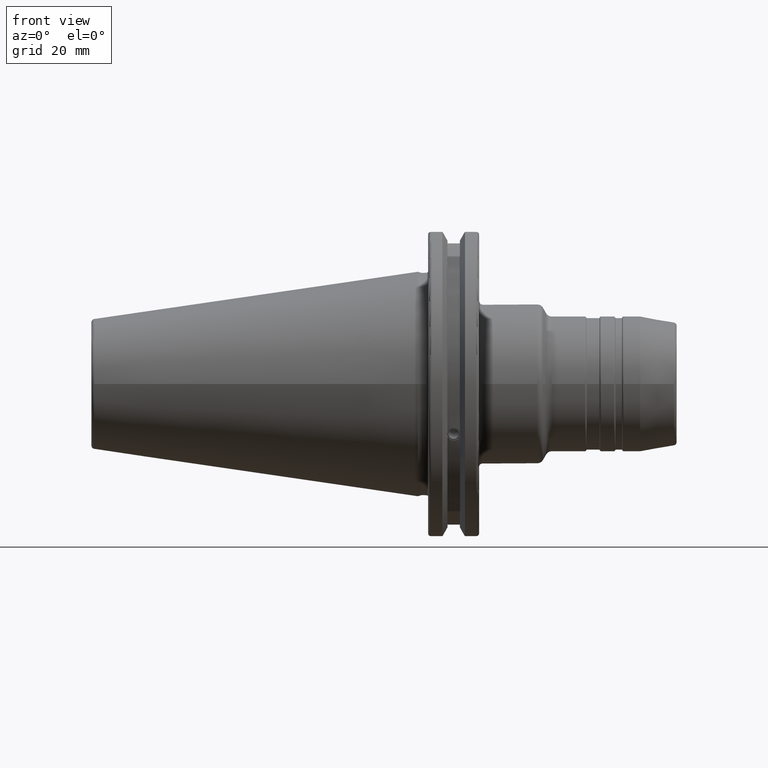
[diagram: clean part render]
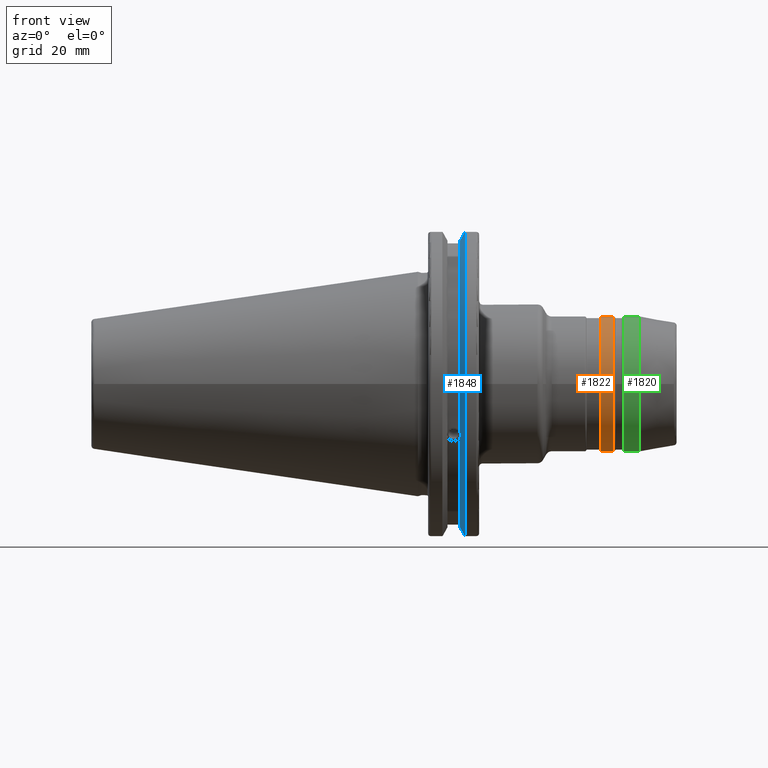
[diagram: same view with three faces highlighted in distinct colors, each labeled with its STEP entity id]
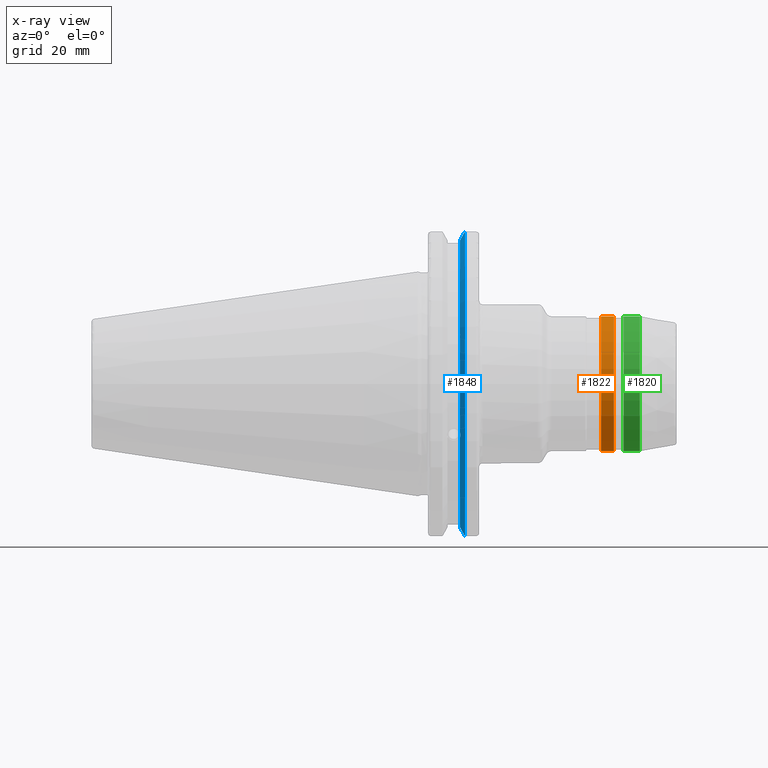
[diagram: x-ray of the same camera — body ghosted, the three highlighted faces saturated]
A machine part, front view with three faces highlighted in distinct colors.
The next image is the same camera in x-ray (body ghosted, the three faces saturated) — at least one of them is partly hidden behind the body in this view.
Their STEP definitions:

[orange] entity #1822 — the highlighted cylindrical surface (bore or boss wall) has radius 21 mm, axis along (1, 0, 0).
#181=FACE_OUTER_BOUND('',#289,.T.);
#289=EDGE_LOOP('',(#1300,#1301,#1302,#1303,#1304,#1305));
#407=LINE('',#2925,#509);
#509=VECTOR('',#2298,21.);
#640=CIRCLE('',#1990,21.);
#641=CIRCLE('',#1991,21.);
#642=CIRCLE('',#1993,21.);
#643=CIRCLE('',#1994,21.);
#765=VERTEX_POINT('',#2918);
#766=VERTEX_POINT('',#2920);
#767=VERTEX_POINT('',#2924);
#768=VERTEX_POINT('',#2926);
#972=EDGE_CURVE('',#765,#766,#640,.T.);
#973=EDGE_CURVE('',#766,#765,#641,.T.);
#974=EDGE_CURVE('',#766,#767,#407,.T.);
#975=EDGE_CURVE('',#768,#767,#642,.T.);
#976=EDGE_CURVE('',#767,#768,#643,.T.);
#1300=ORIENTED_EDGE('',*,*,#973,.F.);
#1301=ORIENTED_EDGE('',*,*,#974,.T.);
#1302=ORIENTED_EDGE('',*,*,#975,.F.);
#1303=ORIENTED_EDGE('',*,*,#976,.F.);
#1304=ORIENTED_EDGE('',*,*,#974,.F.);
#1305=ORIENTED_EDGE('',*,*,#972,.F.);
#1779=CYLINDRICAL_SURFACE('',#1992,21.);
#1822=ADVANCED_FACE('',(#181),#1779,.T.);
#1990=AXIS2_PLACEMENT_3D('',#2921,#2292,#2293);
#1991=AXIS2_PLACEMENT_3D('',#2922,#2294,#2295);
#1992=AXIS2_PLACEMENT_3D('',#2923,#2296,#2297);
#1993=AXIS2_PLACEMENT_3D('',#2927,#2299,#2300);
#1994=AXIS2_PLACEMENT_3D('',#2928,#2301,#2302);
#2292=DIRECTION('center_axis',(1.,0.,0.));
#2293=DIRECTION('ref_axis',(0.,-1.,1.83697019872103E-16));
#2294=DIRECTION('center_axis',(1.,0.,0.));
#2295=DIRECTION('ref_axis',(0.,-1.,1.83697019872103E-16));
#2296=DIRECTION('center_axis',(1.,0.,0.));
#2297=DIRECTION('ref_axis',(0.,1.,0.));
#2298=DIRECTION('',(-1.,0.,0.));
#2299=DIRECTION('center_axis',(-1.,0.,0.));
#2300=DIRECTION('ref_axis',(0.,-1.,1.83697019872103E-16));
#2301=DIRECTION('center_axis',(-1.,0.,0.));
#2302=DIRECTION('ref_axis',(0.,-1.,1.83697019872103E-16));
#2918=CARTESIAN_POINT('',(60.9803847577293,-2.57175827820944E-15,21.));
#2920=CARTESIAN_POINT('',(60.9803847577293,-21.,-2.57175827820944E-15));
#2921=CARTESIAN_POINT('Origin',(60.9803847577293,0.,0.));
#2922=CARTESIAN_POINT('Origin',(60.9803847577293,0.,0.));
#2923=CARTESIAN_POINT('Origin',(59.,0.,0.));
#2924=CARTESIAN_POINT('',(57.0196152422707,-21.,-2.57175827820944E-15));
#2925=CARTESIAN_POINT('',(59.,-21.,-2.57175827820944E-15));
#2926=CARTESIAN_POINT('',(57.0196152422707,-2.57175827820944E-15,21.));
#2927=CARTESIAN_POINT('Origin',(57.0196152422707,0.,0.));
#2928=CARTESIAN_POINT('Origin',(57.0196152422707,0.,0.));

[blue] entity #1848 — the highlighted conical surface has half-angle 60 deg.
#15=(
BOUNDED_CURVE()
B_SPLINE_CURVE(2,(#3222,#3223,#3224),.UNSPECIFIED.,.F.,.F.)
B_SPLINE_CURVE_WITH_KNOTS((3,3),(0.,0.275823910673016),.UNSPECIFIED.)
CURVE()
GEOMETRIC_REPRESENTATION_ITEM()
RATIONAL_B_SPLINE_CURVE((1.,1.00038235574188,1.00012873636688))
REPRESENTATION_ITEM('')
);
#16=(
BOUNDED_CURVE()
B_SPLINE_CURVE(2,(#3226,#3227,#3228),.UNSPECIFIED.,.F.,.F.)
B_SPLINE_CURVE_WITH_KNOTS((3,3),(0.,0.064824047289736),.UNSPECIFIED.)
CURVE()
GEOMETRIC_REPRESENTATION_ITEM()
RATIONAL_B_SPLINE_CURVE((1.,1.00011477674827,1.00019140645933))
REPRESENTATION_ITEM('')
);
#17=(
BOUNDED_CURVE()
B_SPLINE_CURVE(2,(#3232,#3233,#3234),.UNSPECIFIED.,.F.,.F.)
B_SPLINE_CURVE_WITH_KNOTS((3,3),(0.325260944932422,0.390084992222201),
 .UNSPECIFIED.)
CURVE()
GEOMETRIC_REPRESENTATION_ITEM()
RATIONAL_B_SPLINE_CURVE((1.00019140645968,1.00011477674848,1.))
REPRESENTATION_ITEM('')
);
#18=(
BOUNDED_CURVE()
B_SPLINE_CURVE(2,(#3236,#3237,#3238),.UNSPECIFIED.,.F.,.F.)
B_SPLINE_CURVE_WITH_KNOTS((3,3),(0.0558332664513841,0.331657177124504),
 .UNSPECIFIED.)
CURVE()
GEOMETRIC_REPRESENTATION_ITEM()
RATIONAL_B_SPLINE_CURVE((1.0001287363678,1.00038235574463,1.))
REPRESENTATION_ITEM('')
);
#97=CONICAL_SURFACE('',#2057,47.8172386482472,1.0471975511966);
#135=B_SPLINE_CURVE_WITH_KNOTS('',3,(#3131,#3132,#3133,#3134,#3135,#3136,
#3137,#3138),.UNSPECIFIED.,.F.,.F.,(4,2,2,4),(0.42671286835872,0.441644498666905,
0.480313313223129,0.518982127779353),.UNSPECIFIED.);
#139=B_SPLINE_CURVE_WITH_KNOTS('',3,(#3193,#3194,#3195,#3196,#3197,#3198,
#3199,#3200),.UNSPECIFIED.,.F.,.F.,(4,2,2,4),(0.518982127779353,0.557650942335576,
0.5963197568918,0.611251387199986),.UNSPECIFIED.);
#207=FACE_OUTER_BOUND('',#323,.T.);
#323=EDGE_LOOP('',(#1439,#1440,#1441,#1442,#1443,#1444,#1445,#1446,#1447));
#680=CIRCLE('',#2058,46.4219772964944);
#681=CIRCLE('',#2059,49.2125);
#682=CIRCLE('',#2060,46.4219772964944);
#809=VERTEX_POINT('',#3128);
#810=VERTEX_POINT('',#3130);
#817=VERTEX_POINT('',#3191);
#823=VERTEX_POINT('',#3219);
#824=VERTEX_POINT('',#3221);
#825=VERTEX_POINT('',#3225);
#826=VERTEX_POINT('',#3229);
#827=VERTEX_POINT('',#3231);
#828=VERTEX_POINT('',#3235);
#1033=EDGE_CURVE('',#810,#809,#135,.T.);
#1041=EDGE_CURVE('',#809,#817,#139,.T.);
#1049=EDGE_CURVE('',#817,#823,#680,.T.);
#1050=EDGE_CURVE('',#823,#824,#15,.T.);
#1051=EDGE_CURVE('',#825,#824,#16,.T.);
#1052=EDGE_CURVE('',#826,#825,#681,.T.);
#1053=EDGE_CURVE('',#827,#826,#17,.T.);
#1054=EDGE_CURVE('',#827,#828,#18,.T.);
#1055=EDGE_CURVE('',#828,#810,#682,.T.);
#1439=ORIENTED_EDGE('',*,*,#1033,.T.);
#1440=ORIENTED_EDGE('',*,*,#1041,.T.);
#1441=ORIENTED_EDGE('',*,*,#1049,.T.);
#1442=ORIENTED_EDGE('',*,*,#1050,.T.);
#1443=ORIENTED_EDGE('',*,*,#1051,.F.);
#1444=ORIENTED_EDGE('',*,*,#1052,.F.);
#1445=ORIENTED_EDGE('',*,*,#1053,.F.);
#1446=ORIENTED_EDGE('',*,*,#1054,.T.);
#1447=ORIENTED_EDGE('',*,*,#1055,.T.);
#1848=ADVANCED_FACE('',(#207),#97,.T.);
#2057=AXIS2_PLACEMENT_3D('',#3218,#2453,#2454);
#2058=AXIS2_PLACEMENT_3D('',#3220,#2455,#2456);
#2059=AXIS2_PLACEMENT_3D('',#3230,#2457,#2458);
#2060=AXIS2_PLACEMENT_3D('',#3239,#2459,#2460);
#2453=DIRECTION('center_axis',(1.,0.,0.));
#2454=DIRECTION('ref_axis',(0.,-1.,-1.22464679914735E-16));
#2455=DIRECTION('center_axis',(1.,0.,0.));
#2456=DIRECTION('ref_axis',(0.,0.,-1.));
#2457=DIRECTION('center_axis',(1.,0.,0.));
#2458=DIRECTION('ref_axis',(0.,0.,-1.));
#2459=DIRECTION('center_axis',(1.,0.,0.));
#2460=DIRECTION('ref_axis',(0.,0.,-1.));
#3128=CARTESIAN_POINT('',(13.2341,-43.923494649906,-15.9868446375166));
#3130=CARTESIAN_POINT('',(13.0491,-43.9096390749305,-15.0646464421033));
#3131=CARTESIAN_POINT('Ctrl Pts',(13.0491,-43.9096390749305,-15.0646464421033));
#3132=CARTESIAN_POINT('Ctrl Pts',(13.0660815609661,-43.9250360001461,-15.1104047527575));
#3133=CARTESIAN_POINT('Ctrl Pts',(13.0821132459668,-43.9385582852181,-15.1564111356409));
#3134=CARTESIAN_POINT('Ctrl Pts',(13.1358132615496,-43.9797830409459,-15.3217566390708));
#3135=CARTESIAN_POINT('Ctrl Pts',(13.1719838933644,-43.9989016655819,-15.4570249042868));
#3136=CARTESIAN_POINT('Ctrl Pts',(13.2212913174802,-43.9931221605126,-15.7289849146254));
#3137=CARTESIAN_POINT('Ctrl Pts',(13.2341,-43.9675796948952,-15.8657219718732));
#3138=CARTESIAN_POINT('Ctrl Pts',(13.2341,-43.923494649906,-15.9868446375166));
#3191=CARTESIAN_POINT('',(13.0491,-43.3201030900029,-16.6843832486479));
#3193=CARTESIAN_POINT('Ctrl Pts',(13.2341,-43.923494649906,-15.9868446375166));
#3194=CARTESIAN_POINT('Ctrl Pts',(13.2341,-43.8794096049169,-16.10796730316));
#3195=CARTESIAN_POINT('Ctrl Pts',(13.2212913174802,-43.8110833825828,-16.2291323464527));
#3196=CARTESIAN_POINT('Ctrl Pts',(13.1719838933644,-43.6406982153492,-16.441180795372));
#3197=CARTESIAN_POINT('Ctrl Pts',(13.1358132615496,-43.5391037343221,-16.5325130832406));
#3198=CARTESIAN_POINT('Ctrl Pts',(13.0821132459668,-43.4012416983557,-16.6326763251437));
#3199=CARTESIAN_POINT('Ctrl Pts',(13.0660815609661,-43.3613106941341,-16.6592273018006));
#3200=CARTESIAN_POINT('Ctrl Pts',(13.0491,-43.3201030900029,-16.6843832486479));
#3218=CARTESIAN_POINT('Origin',(13.8546545170244,0.,0.));
#3219=CARTESIAN_POINT('',(13.0491,-12.95,-44.5791147973604));
#3220=CARTESIAN_POINT('Origin',(13.0491,0.,0.));
#3221=CARTESIAN_POINT('',(14.3818103943757,-12.95,-46.9780755322917));
#3222=CARTESIAN_POINT('Ctrl Pts',(13.0491,-12.95,-44.5791147973604));
#3223=CARTESIAN_POINT('Ctrl Pts',(13.697995509465,-12.95,-45.7494966802572));
#3224=CARTESIAN_POINT('Ctrl Pts',(14.3818103943757,-12.95,-46.9780755322917));
#3225=CARTESIAN_POINT('',(14.6602090340487,-13.4317035994433,-47.3440544806494));
#3226=CARTESIAN_POINT('Ctrl Pts',(14.6602090340487,-13.4317035994433,-47.3440544806494));
#3227=CARTESIAN_POINT('Ctrl Pts',(14.5199310333618,-13.1896660169966,-47.1601640966265));
#3228=CARTESIAN_POINT('Ctrl Pts',(14.3818103943757,-12.95,-46.9780755322917));
#3229=CARTESIAN_POINT('',(14.6602090340487,-13.4317035994433,47.3440544806494));
#3230=CARTESIAN_POINT('Origin',(14.6602090340487,0.,0.));
#3231=CARTESIAN_POINT('',(14.3818103943757,-12.95,46.9780755322918));
#3232=CARTESIAN_POINT('Ctrl Pts',(14.3818103943757,-12.95,46.9780755322918));
#3233=CARTESIAN_POINT('Ctrl Pts',(14.5199310333618,-13.1896660169966,47.1601640966264));
#3234=CARTESIAN_POINT('Ctrl Pts',(14.6602090340487,-13.4317035994433,47.3440544806494));
#3235=CARTESIAN_POINT('',(13.0491,-12.95,44.5791147973604));
#3236=CARTESIAN_POINT('Ctrl Pts',(14.3818103943757,-12.95,46.9780755322917));
#3237=CARTESIAN_POINT('Ctrl Pts',(13.6979955094656,-12.95,45.7494966802583));
#3238=CARTESIAN_POINT('Ctrl Pts',(13.0491,-12.95,44.5791147973604));
#3239=CARTESIAN_POINT('Origin',(13.0491,0.,0.));

[green] entity #1820 — the highlighted cylindrical surface (bore or boss wall) has radius 21 mm, axis along (1, 0, 0).
#179=FACE_OUTER_BOUND('',#287,.T.);
#287=EDGE_LOOP('',(#1288,#1289,#1290,#1291,#1292,#1293));
#406=LINE('',#2915,#508);
#508=VECTOR('',#2285,21.);
#634=CIRCLE('',#1982,21.);
#635=CIRCLE('',#1983,21.);
#637=CIRCLE('',#1986,21.);
#638=CIRCLE('',#1987,21.);
#761=VERTEX_POINT('',#2906);
#762=VERTEX_POINT('',#2907);
#763=VERTEX_POINT('',#2912);
#764=VERTEX_POINT('',#2913);
#965=EDGE_CURVE('',#761,#762,#634,.T.);
#966=EDGE_CURVE('',#762,#761,#635,.T.);
#968=EDGE_CURVE('',#763,#764,#637,.T.);
#969=EDGE_CURVE('',#763,#762,#406,.T.);
#970=EDGE_CURVE('',#764,#763,#638,.T.);
#1288=ORIENTED_EDGE('',*,*,#968,.F.);
#1289=ORIENTED_EDGE('',*,*,#969,.T.);
#1290=ORIENTED_EDGE('',*,*,#965,.F.);
#1291=ORIENTED_EDGE('',*,*,#966,.F.);
#1292=ORIENTED_EDGE('',*,*,#969,.F.);
#1293=ORIENTED_EDGE('',*,*,#970,.F.);
#1778=CYLINDRICAL_SURFACE('',#1985,21.);
#1820=ADVANCED_FACE('',(#179),#1778,.T.);
#1982=AXIS2_PLACEMENT_3D('',#2908,#2275,#2276);
#1983=AXIS2_PLACEMENT_3D('',#2909,#2277,#2278);
#1985=AXIS2_PLACEMENT_3D('',#2911,#2281,#2282);
#1986=AXIS2_PLACEMENT_3D('',#2914,#2283,#2284);
#1987=AXIS2_PLACEMENT_3D('',#2916,#2286,#2287);
#2275=DIRECTION('center_axis',(-1.,0.,0.));
#2276=DIRECTION('ref_axis',(0.,-1.,1.83697019872103E-16));
#2277=DIRECTION('center_axis',(-1.,0.,0.));
#2278=DIRECTION('ref_axis',(0.,-1.,1.83697019872103E-16));
#2281=DIRECTION('center_axis',(1.,0.,0.));
#2282=DIRECTION('ref_axis',(0.,1.,0.));
#2283=DIRECTION('center_axis',(1.,0.,0.));
#2284=DIRECTION('ref_axis',(0.,-1.,1.83697019872103E-16));
#2285=DIRECTION('',(-1.,0.,0.));
#2286=DIRECTION('center_axis',(1.,0.,0.));
#2287=DIRECTION('ref_axis',(0.,-1.,1.83697019872103E-16));
#2906=CARTESIAN_POINT('',(64.0196152422707,-2.57175827820944E-15,21.));
#2907=CARTESIAN_POINT('',(64.0196152422707,-21.,-2.57175827820944E-15));
#2908=CARTESIAN_POINT('Origin',(64.0196152422707,0.,0.));
#2909=CARTESIAN_POINT('Origin',(64.0196152422707,0.,0.));
#2911=CARTESIAN_POINT('Origin',(66.4730557476797,0.,0.));
#2912=CARTESIAN_POINT('',(69.0699476972386,-21.,-2.57175827820944E-15));
#2913=CARTESIAN_POINT('',(69.0699476972386,-2.57175827820944E-15,21.));
#2914=CARTESIAN_POINT('Origin',(69.0699476972386,0.,0.));
#2915=CARTESIAN_POINT('',(66.4730557476797,-21.,-2.57175827820944E-15));
#2916=CARTESIAN_POINT('Origin',(69.0699476972386,0.,0.));